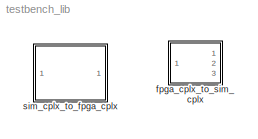
MODEL testbench_lib
KIND library
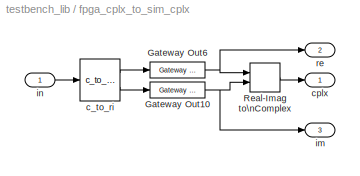
BLOCK [SubSystem] fpga_cplx_to_sim_cplx
  AttributesFormatString = 18_17 bit
  MaskDescription = Converts a Casper complex to a Simulink complex
  MaskEnableString = on
  MaskIconFrame = on
  MaskIconOpaque = on
  MaskIconRotate = none
  MaskIconUnits = autoscale
  MaskInitialization = set_param(gcb, 'AttributesFormatString', sprintf('%d_%d bit',width,width-1));
  MaskPromptString = Data Width
  MaskStyleString = edit
  MaskToolTipString = on
  MaskTunableValueString = on
  MaskValueString = 18
  MaskVariables = width=@1;
  MaskVisibilityString = on
  MinAlgLoopOccurrences = off
  Ports = [1, 3]
  RTWSystemCode = Auto
  TreatAsAtomicUnit = off
BLOCK [Reference] fpga_cplx_to_sim_cplx/Gateway Out10  REF=xbsIndex_r3/Gateway Out
  LOCs = {}
  Ports = [1, 1]
  SourceBlock = xbsIndex_r3/Gateway Out
  SourceType = Xilinx Gateway Out
  arith_type = Boolean
  bin_pt = 6
  hdl_port = on
  locs_specified = off
  nbits = 8
  needs_fixed_name = off
  output_type = Double
  overflow = Wrap
  quantization = Truncate
  show_param = off
  timing_constraint = None
  xl_area = [0, 0, 0, 0, 0, 0, 0]
  xl_use_area = off
BLOCK [Reference] fpga_cplx_to_sim_cplx/Gateway Out6  REF=xbsIndex_r3/Gateway Out
  LOCs = {}
  Ports = [1, 1]
  SourceBlock = xbsIndex_r3/Gateway Out
  SourceType = Xilinx Gateway Out
  arith_type = Boolean
  bin_pt = 6
  hdl_port = on
  locs_specified = off
  nbits = 8
  needs_fixed_name = off
  output_type = Double
  overflow = Wrap
  quantization = Truncate
  show_param = off
  timing_constraint = None
  xl_area = [0, 0, 0, 0, 0, 0, 0]
  xl_use_area = off
BLOCK [RealImagToComplex] fpga_cplx_to_sim_cplx/Real-Imag to\nComplex
  Ports = [2, 1]
BLOCK [Reference] fpga_cplx_to_sim_cplx/c_to_ri  REF=casper_library/Misc/c_to_ri  (lib defined in mdl_138b2fc3435f, mdl_4ed325b712b3, +2 more)
  AttributesFormatString = 49_56 r/i48_55 r/i
  Ports = [1, 2]
  ShowPortLabels = on
  SourceBlock = casper_library/Misc/c_to_ri
  SourceType = c_to_ri
  UserData = DataTag0
  UserDataPersistent = on
  bin_pt = width-1
  n_bits = width
BLOCK [Outport] fpga_cplx_to_sim_cplx/cplx
  BusOutputAsStruct = off
  IconDisplay = Port number
BLOCK [Outport] fpga_cplx_to_sim_cplx/im
  BusOutputAsStruct = off
  IconDisplay = Port number
  Port = 3
BLOCK [Inport] fpga_cplx_to_sim_cplx/in
  IconDisplay = Port number
  LatchInput = off
  Port = 1
BLOCK [Outport] fpga_cplx_to_sim_cplx/re
  BusOutputAsStruct = off
  IconDisplay = Port number
  Port = 2
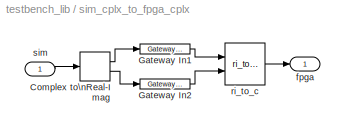
BLOCK [SubSystem] sim_cplx_to_fpga_cplx
  AttributesFormatString = 18_17 bit
  MaskDescription = Converts a Simulink complex to fixed point and concatenates it to a Casper complex.\nOutput is two Fix_width_(width-1) numbers concatenated.
  MaskEnableString = on
  MaskIconFrame = on
  MaskIconOpaque = on
  MaskIconRotate = none
  MaskIconUnits = autoscale
  MaskInitialization = set_param(gcb, 'AttributesFormatString', sprintf('%d_%d bit',width,width-1));
  MaskPromptString = Data Width
  MaskStyleString = edit
  MaskToolTipString = on
  MaskTunableValueString = on
  MaskValueString = 18
  MaskVariables = width=@1;
  MaskVisibilityString = on
  MinAlgLoopOccurrences = off
  Ports = [1, 1]
  RTWSystemCode = Auto
  TreatAsAtomicUnit = off
BLOCK [ComplexToRealImag] sim_cplx_to_fpga_cplx/Complex to\nReal-Imag
  Output = Real and imag
  Ports = [1, 2]
BLOCK [Reference] sim_cplx_to_fpga_cplx/Gateway In1  REF=xbsIndex_r3/Gateway In
  LOCs = {}
  Ports = [1, 1]
  SourceBlock = xbsIndex_r3/Gateway In
  SourceType = Xilinx Gateway In
  arith_type = Signed  (2's comp)
  bin_pt = width-1
  dbl_ovrd = off
  locs_specified = off
  n_bits = width
  needs_fixed_name = off
  overflow = Wrap
  period = 1
  quantization = Truncate
  show_param = off
  timing_constraint = None
  xl_area = [0, 0, 0, 0, 0, 0, 0]
  xl_use_area = off
BLOCK [Reference] sim_cplx_to_fpga_cplx/Gateway In2  REF=xbsIndex_r3/Gateway In
  LOCs = {}
  Ports = [1, 1]
  SourceBlock = xbsIndex_r3/Gateway In
  SourceType = Xilinx Gateway In
  arith_type = Signed  (2's comp)
  bin_pt = width-1
  dbl_ovrd = off
  locs_specified = off
  n_bits = width
  needs_fixed_name = off
  overflow = Wrap
  period = 1
  quantization = Truncate
  show_param = off
  timing_constraint = None
  xl_area = [0, 0, 0, 0, 0, 0, 0]
  xl_use_area = off
BLOCK [Outport] sim_cplx_to_fpga_cplx/fpga
  BusOutputAsStruct = off
  IconDisplay = Port number
BLOCK [Reference] sim_cplx_to_fpga_cplx/ri_to_c  REF=casper_library/Misc/ri_to_c  (lib defined in mdl_138b2fc3435f, mdl_4ed325b712b3, +2 more)
  Ports = [2, 1]
  ShowPortLabels = on
  SourceBlock = casper_library/Misc/ri_to_c
  SourceType = ri_to_c
  UserData = DataTag1
  UserDataPersistent = on
BLOCK [Inport] sim_cplx_to_fpga_cplx/sim
  IconDisplay = Port number
  LatchInput = off
  Port = 1
NET fpga_cplx_to_sim_cplx/Gateway Out10:1 -> fpga_cplx_to_sim_cplx/Real-Imag to\nComplex:2, fpga_cplx_to_sim_cplx/im:1
NET fpga_cplx_to_sim_cplx/Gateway Out6:1 -> fpga_cplx_to_sim_cplx/Real-Imag to\nComplex:1, fpga_cplx_to_sim_cplx/re:1
LINE fpga_cplx_to_sim_cplx/Real-Imag to\nComplex:1 -> fpga_cplx_to_sim_cplx/cplx:1
LINE fpga_cplx_to_sim_cplx/c_to_ri:1 -> fpga_cplx_to_sim_cplx/Gateway Out6:1
LINE fpga_cplx_to_sim_cplx/c_to_ri:2 -> fpga_cplx_to_sim_cplx/Gateway Out10:1
LINE fpga_cplx_to_sim_cplx/in:1 -> fpga_cplx_to_sim_cplx/c_to_ri:1
LINE sim_cplx_to_fpga_cplx/Complex to\nReal-Imag:1 -> sim_cplx_to_fpga_cplx/Gateway In1:1
LINE sim_cplx_to_fpga_cplx/Complex to\nReal-Imag:2 -> sim_cplx_to_fpga_cplx/Gateway In2:1
LINE sim_cplx_to_fpga_cplx/Gateway In1:1 -> sim_cplx_to_fpga_cplx/ri_to_c:1
LINE sim_cplx_to_fpga_cplx/Gateway In2:1 -> sim_cplx_to_fpga_cplx/ri_to_c:2
LINE sim_cplx_to_fpga_cplx/ri_to_c:1 -> sim_cplx_to_fpga_cplx/fpga:1
LINE sim_cplx_to_fpga_cplx/sim:1 -> sim_cplx_to_fpga_cplx/Complex to\nReal-Imag:1
note: NET lines group one-source signal fan-out (src -> all destinations, sorted); 1:1 wires keep LINE
